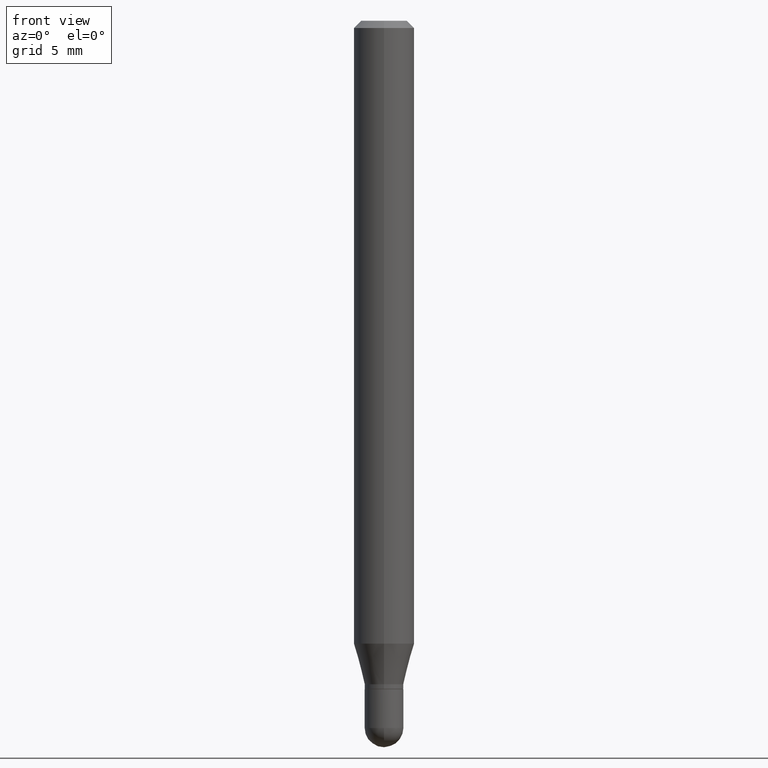
[diagram: clean part render]
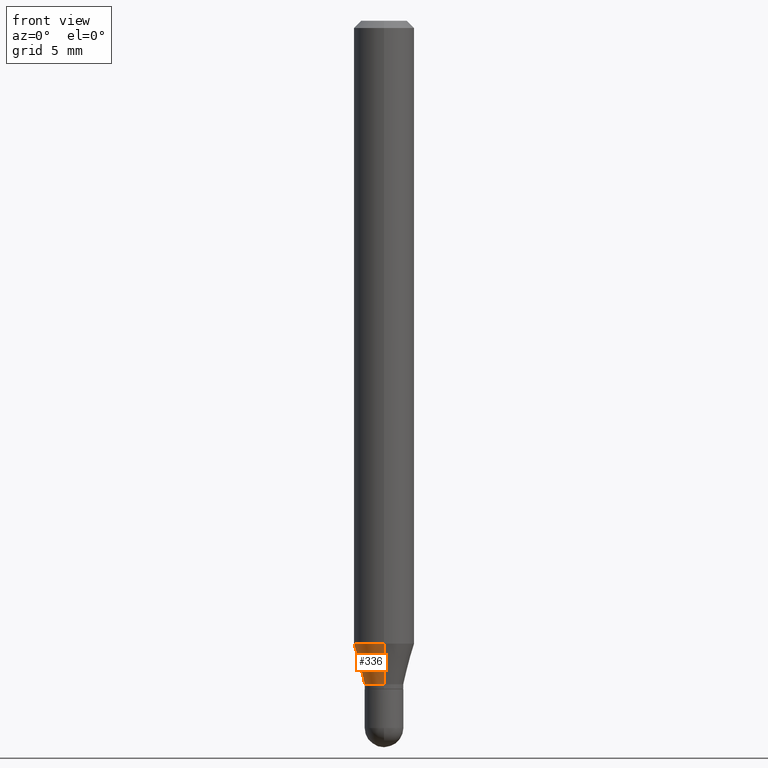
[diagram: same view with one face highlighted and labeled with its STEP entity id]
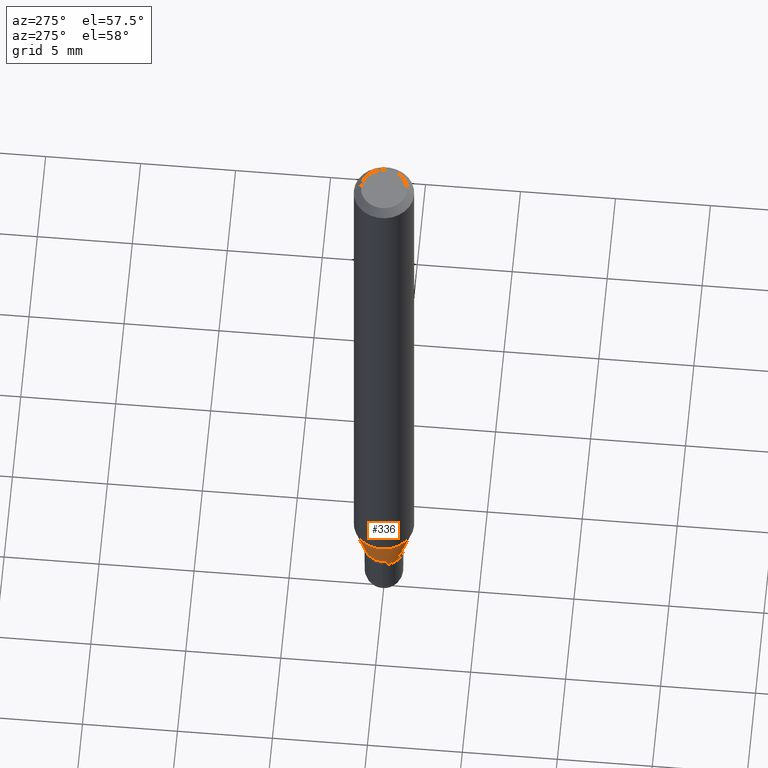
[diagram: same view with one face highlighted and labeled with its STEP entity id]
A machine part, front view. The second image highlights one B-rep face of the part: STEP entity #336.
A second angle (auxiliary view) of the same face is appended — the face is thin or edge-on in the first view.
In plain terms, the highlighted conical surface has half-angle 15 deg.
Its self-contained STEP definition (entity closure, byte-faithful):
#19 = VECTOR ( 'NONE', #238, 39.37007874015748143 ) ;
#22 = DIRECTION ( 'NONE',  ( -6.982962677686265133E-15, -1.000000000000000000, 6.829619984160670865E-15 ) ) ;
#24 = CIRCLE ( 'NONE', #314, 0.03999999999999992450 ) ;
#29 = EDGE_CURVE ( 'NONE', #101, #458, #338, .T. ) ;
#35 = CARTESIAN_POINT ( 'NONE',  ( 2.842170943040729659E-16, 0.03999999999999514361, -1.370000000000000329 ) ) ;
#43 = CARTESIAN_POINT ( 'NONE',  ( 3.350274725718254413E-29, -4.783354550711061750E-15, -1.370000000000000107 ) ) ;
#101 = VERTEX_POINT ( 'NONE', #354 ) ;
#104 = ORIENTED_EDGE ( 'NONE', *, *, #214, .T. ) ;
#127 = CARTESIAN_POINT ( 'NONE',  ( -4.364351673553598685E-16, -0.06250000000000444089, -1.286028856829700251 ) ) ;
#150 = CIRCLE ( 'NONE', #185, 0.06250000000000000000 ) ;
#185 = AXIS2_PLACEMENT_3D ( 'NONE', #281, #432, #399 ) ;
#191 = ORIENTED_EDGE ( 'NONE', *, *, #446, .T. ) ;
#200 = EDGE_CURVE ( 'NONE', #458, #503, #150, .T. ) ;
#204 = DIRECTION ( 'NONE',  ( -2.445456004173908568E-29, 3.491499672051869513E-15, 1.000000000000000000 ) ) ;
#214 = EDGE_CURVE ( 'NONE', #101, #305, #24, .T. ) ;
#220 = DIRECTION ( 'NONE',  ( -2.445456004173908568E-29, 3.491499672051869513E-15, 1.000000000000000000 ) ) ;
#238 = DIRECTION ( 'NONE',  ( -1.807323732225330534E-15, -0.2588190451025182415, 0.9659258262890689783 ) ) ;
#269 = DIRECTION ( 'NONE',  ( 1.839019923739600710E-15, 0.2588190451025250138, 0.9659258262890670910 ) ) ;
#281 = CARTESIAN_POINT ( 'NONE',  ( 3.144926989475098704E-29, -4.490169331870139407E-15, -1.286028856829700473 ) ) ;
#282 = CARTESIAN_POINT ( 'NONE',  ( -2.793185071074166094E-16, -0.04000000000000470540, -1.369999999999999885 ) ) ;
#305 = VERTEX_POINT ( 'NONE', #445 ) ;
#314 = AXIS2_PLACEMENT_3D ( 'NONE', #43, #204, #363 ) ;
#336 = ADVANCED_FACE ( 'NONE', ( #349 ), #385, .T. ) ;
#338 = LINE ( 'NONE', #35, #477 ) ;
#349 = FACE_OUTER_BOUND ( 'NONE', #383, .T. ) ;
#354 = CARTESIAN_POINT ( 'NONE',  ( 3.641531520770834203E-16, 0.03999999999999514361, -1.370000000000000329 ) ) ;
#363 = DIRECTION ( 'NONE',  ( -6.982962677686265133E-15, -1.000000000000000000, 6.829619984160670865E-15 ) ) ;
#372 = LINE ( 'NONE', #282, #19 ) ;
#379 = ORIENTED_EDGE ( 'NONE', *, *, #200, .F. ) ;
#383 = EDGE_LOOP ( 'NONE', ( #427, #104, #191, #379 ) ) ;
#385 = CONICAL_SURFACE ( 'NONE', #478, 0.03999999999999992450, 0.2617993877991502960 ) ;
#389 = CARTESIAN_POINT ( 'NONE',  ( 4.440892098500941706E-16, 0.06249999999999554523, -1.286028856829700695 ) ) ;
#399 = DIRECTION ( 'NONE',  ( -6.982962677686265922E-15, -1.000000000000000000, 4.370956789862821150E-15 ) ) ;
#427 = ORIENTED_EDGE ( 'NONE', *, *, #29, .F. ) ;
#432 = DIRECTION ( 'NONE',  ( -2.445456004173908568E-29, 3.491499672051869513E-15, 1.000000000000000000 ) ) ;
#445 = CARTESIAN_POINT ( 'NONE',  ( -2.793185071074166094E-16, -0.04000000000000470540, -1.369999999999999885 ) ) ;
#446 = EDGE_CURVE ( 'NONE', #305, #503, #372, .T. ) ;
#458 = VERTEX_POINT ( 'NONE', #389 ) ;
#477 = VECTOR ( 'NONE', #269, 39.37007874015748143 ) ;
#478 = AXIS2_PLACEMENT_3D ( 'NONE', #494, #220, #22 ) ;
#494 = CARTESIAN_POINT ( 'NONE',  ( 3.350274725718254413E-29, -4.783354550711061750E-15, -1.370000000000000107 ) ) ;
#503 = VERTEX_POINT ( 'NONE', #127 ) ;